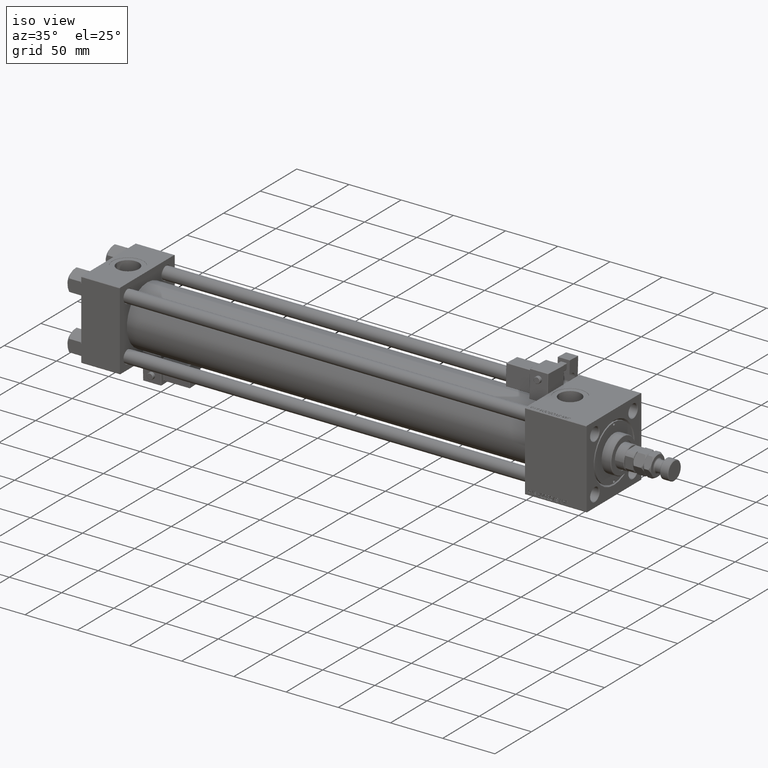
[diagram: clean part render]
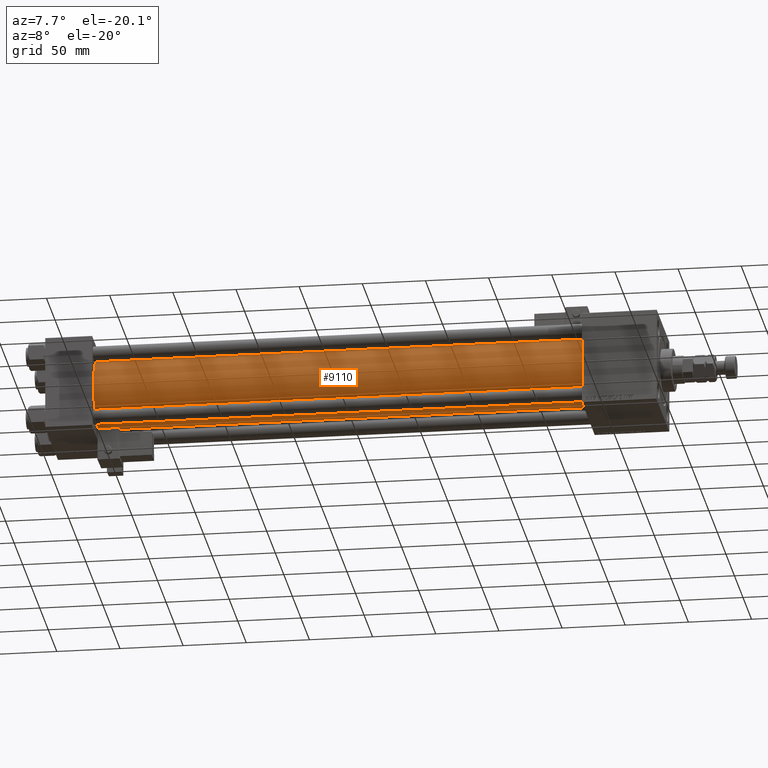
[diagram: tour spotlight — one face highlighted and labeled with its STEP entity id]
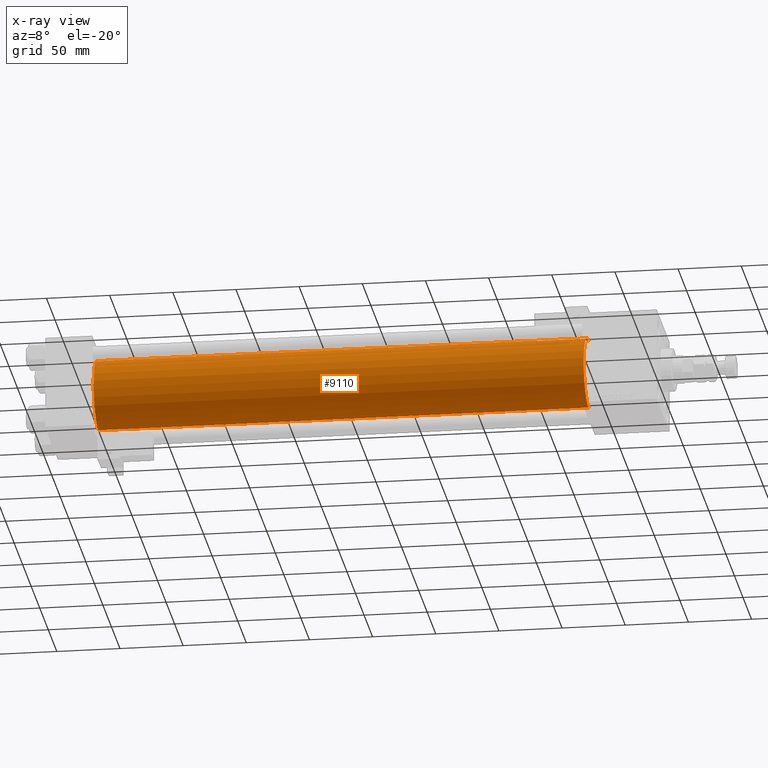
[diagram: x-ray of the same camera — body ghosted, this tour face saturated]
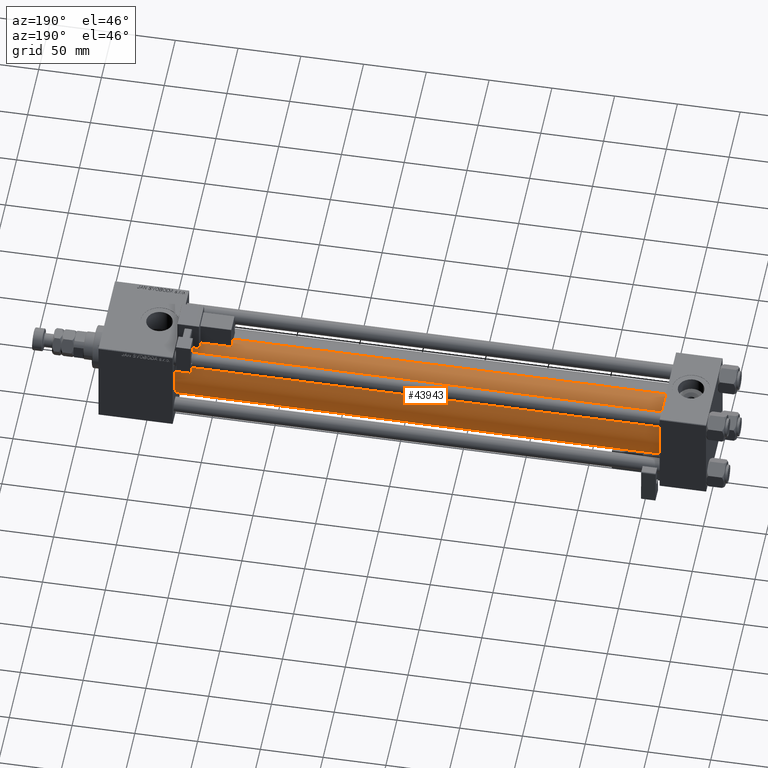
[diagram: tour spotlight — one face highlighted and labeled with its STEP entity id]
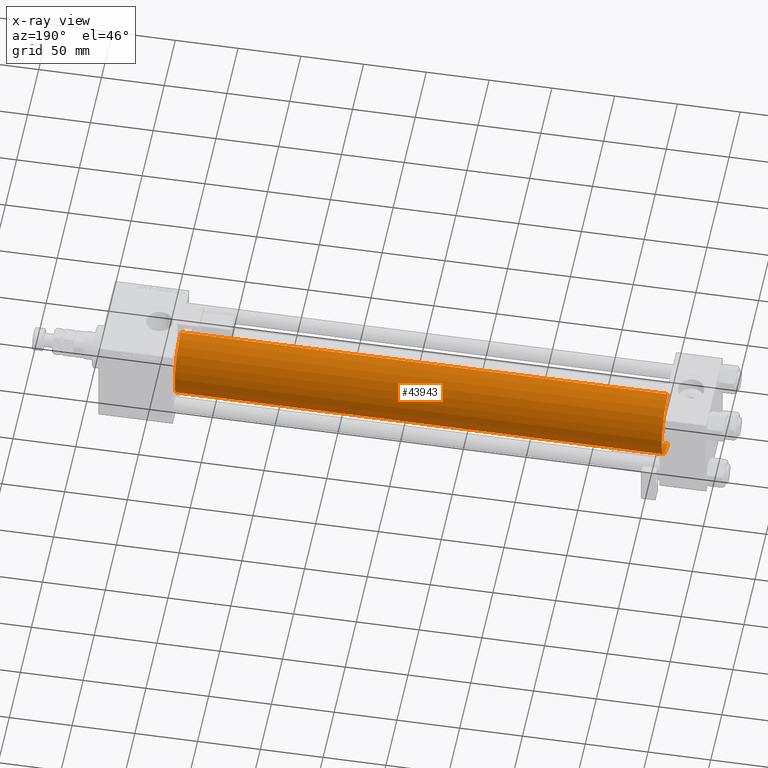
[diagram: x-ray of the same camera — body ghosted, this tour face saturated]
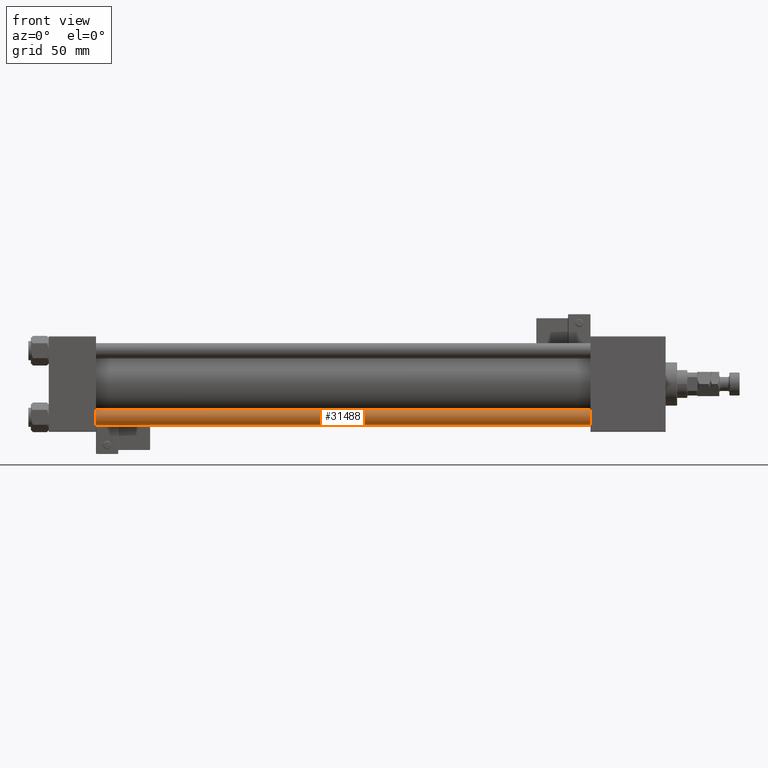
[diagram: tour spotlight — one face highlighted and labeled with its STEP entity id]
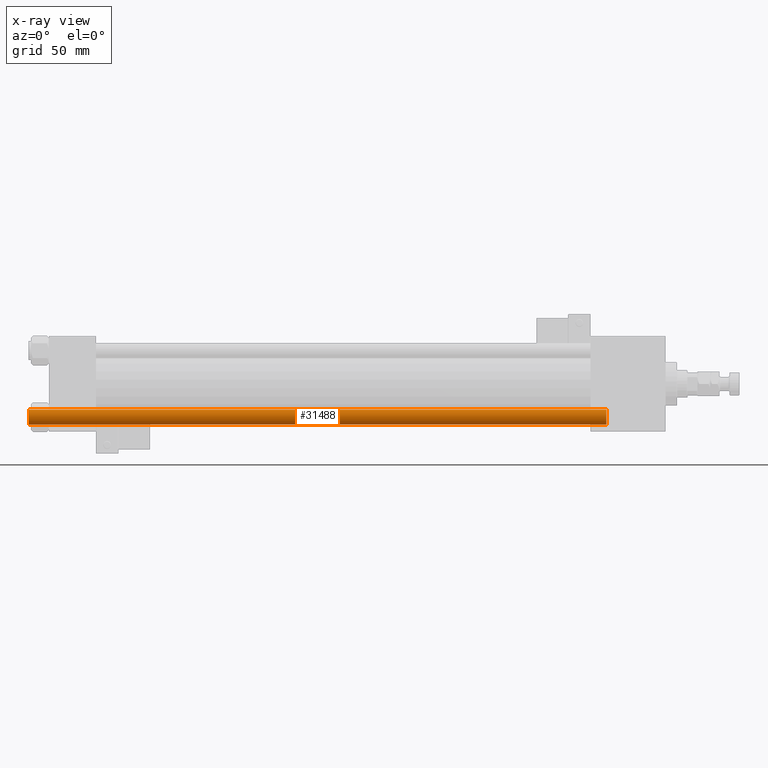
[diagram: x-ray of the same camera — body ghosted, this tour face saturated]
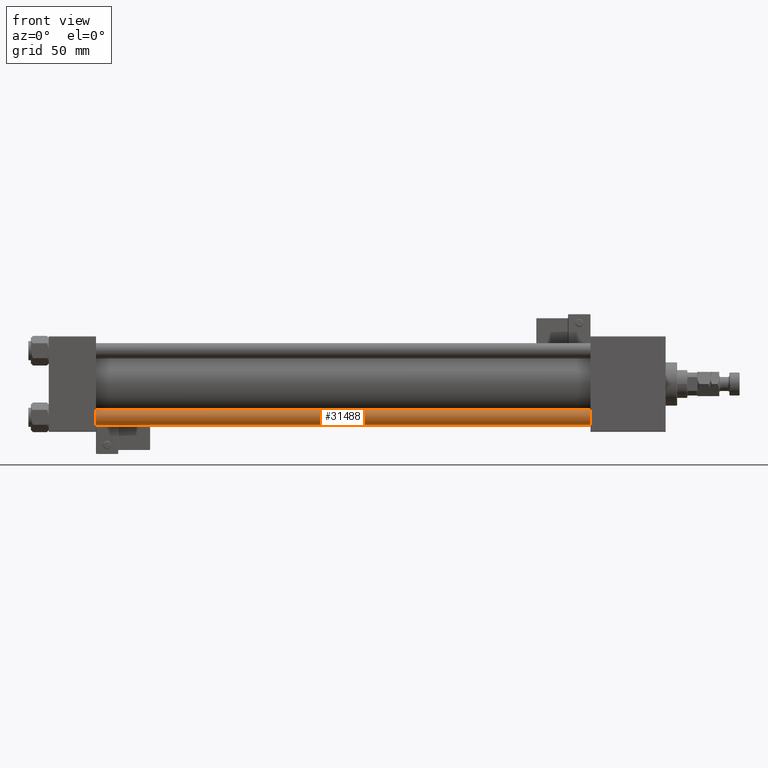
[diagram: tour spotlight — one face highlighted and labeled with its STEP entity id]
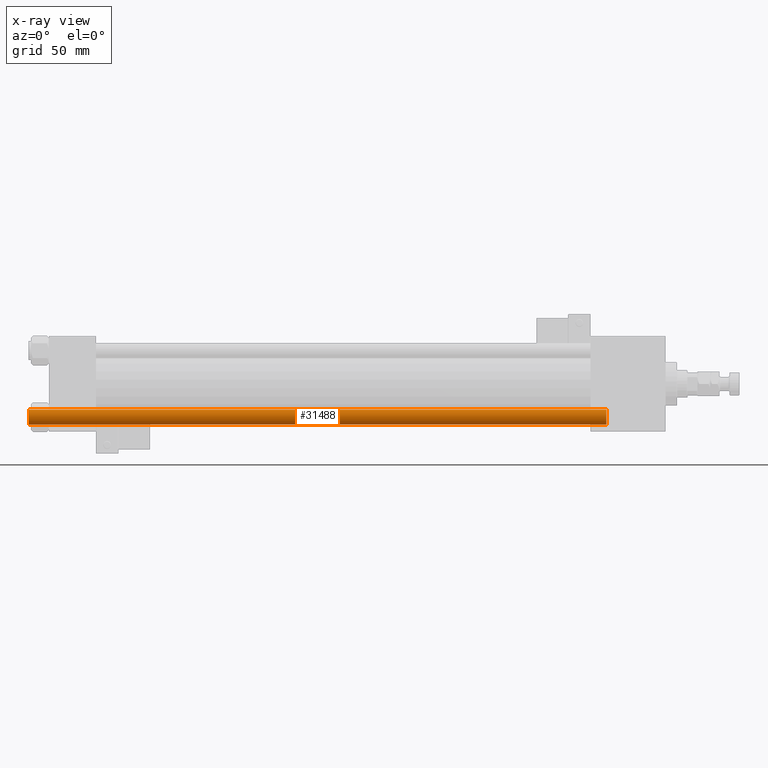
[diagram: x-ray of the same camera — body ghosted, this tour face saturated]
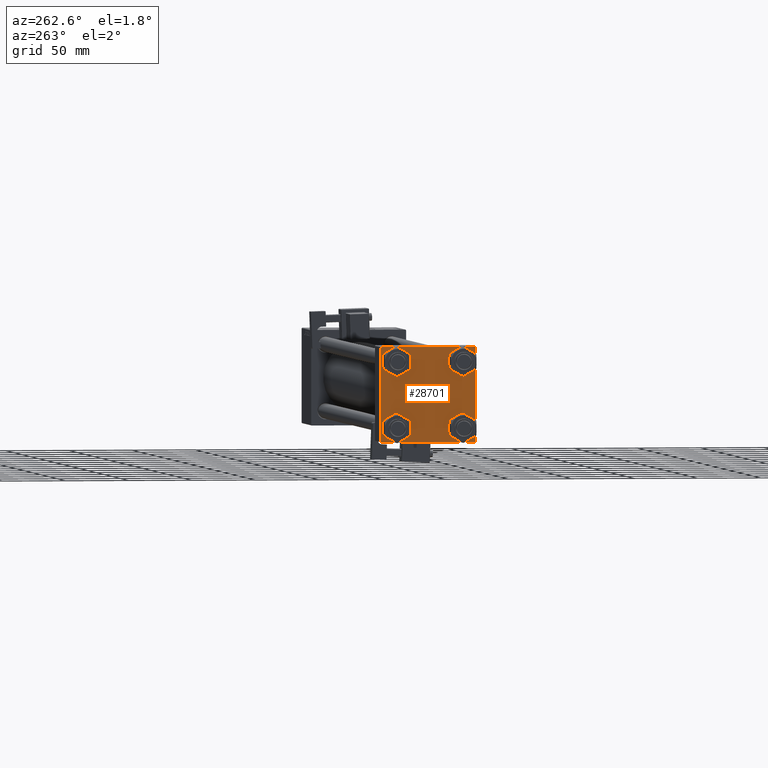
[diagram: tour spotlight — one face highlighted and labeled with its STEP entity id]
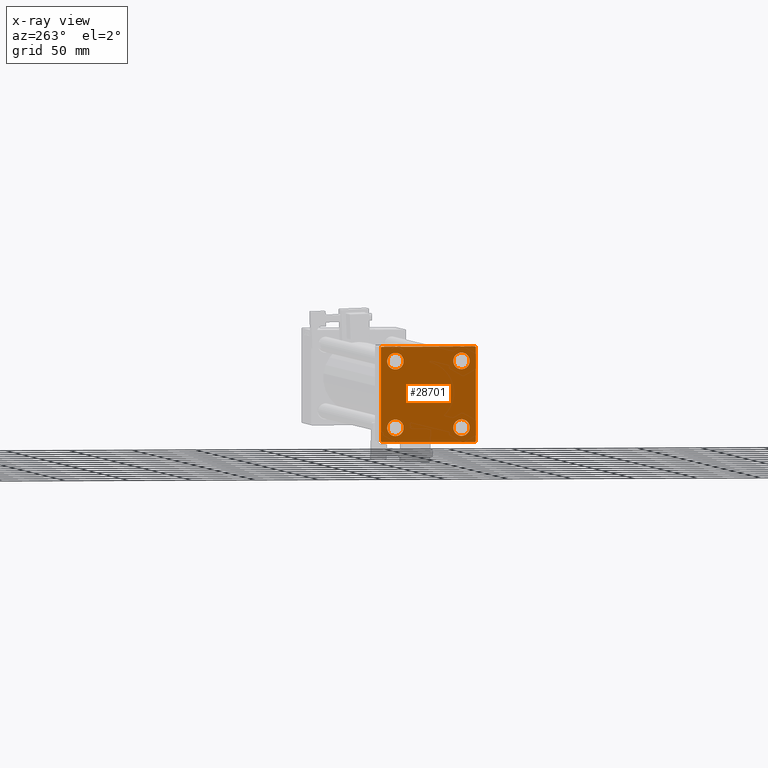
[diagram: x-ray of the same camera — body ghosted, this tour face saturated]
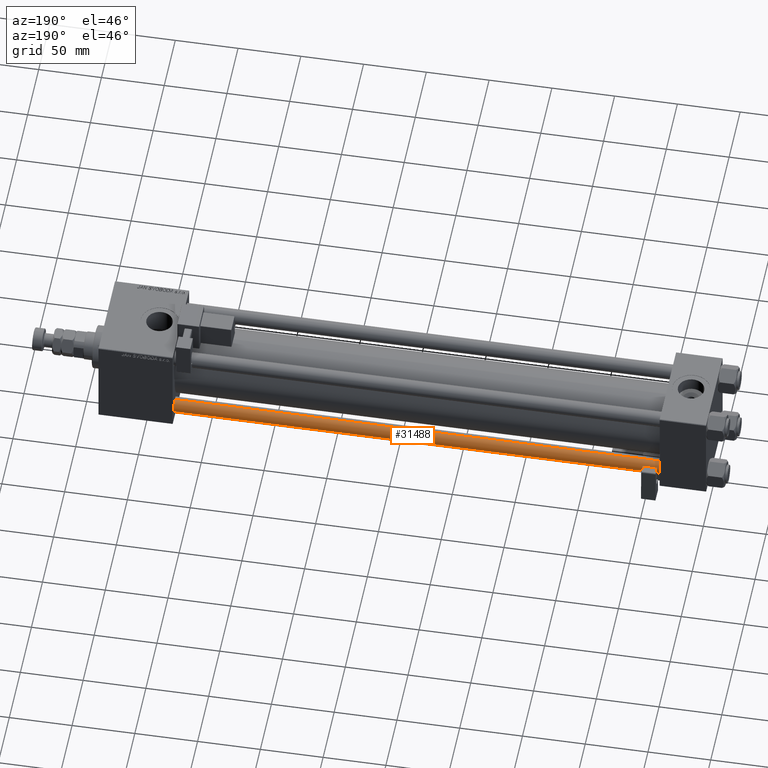
[diagram: tour spotlight — one face highlighted and labeled with its STEP entity id]
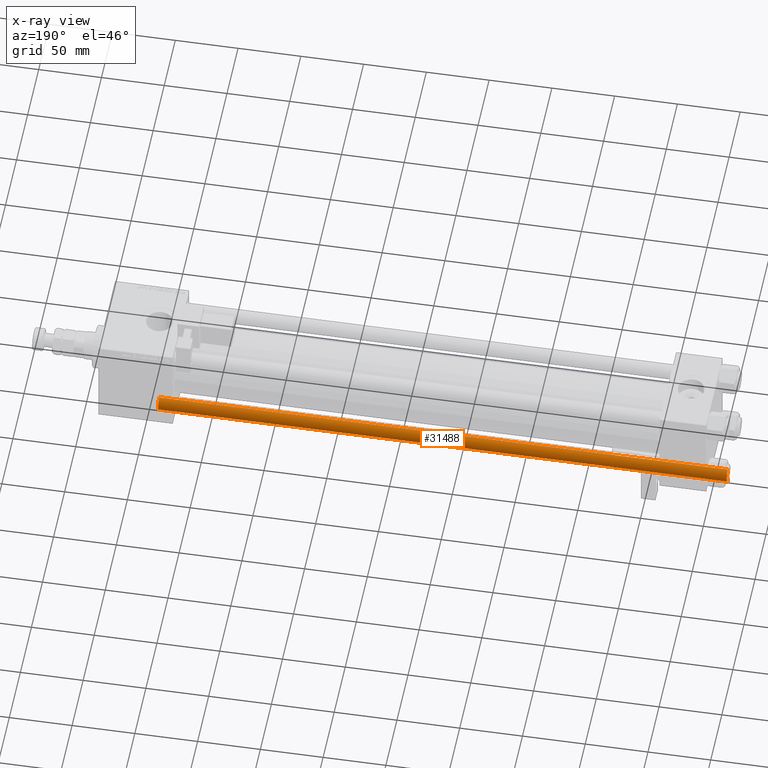
[diagram: x-ray of the same camera — body ghosted, this tour face saturated]
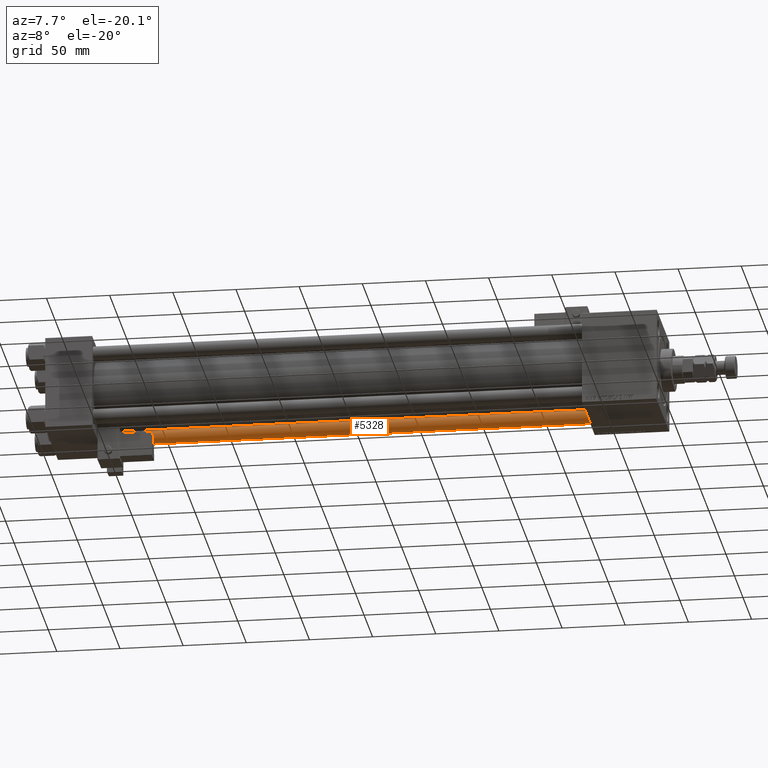
[diagram: tour spotlight — one face highlighted and labeled with its STEP entity id]
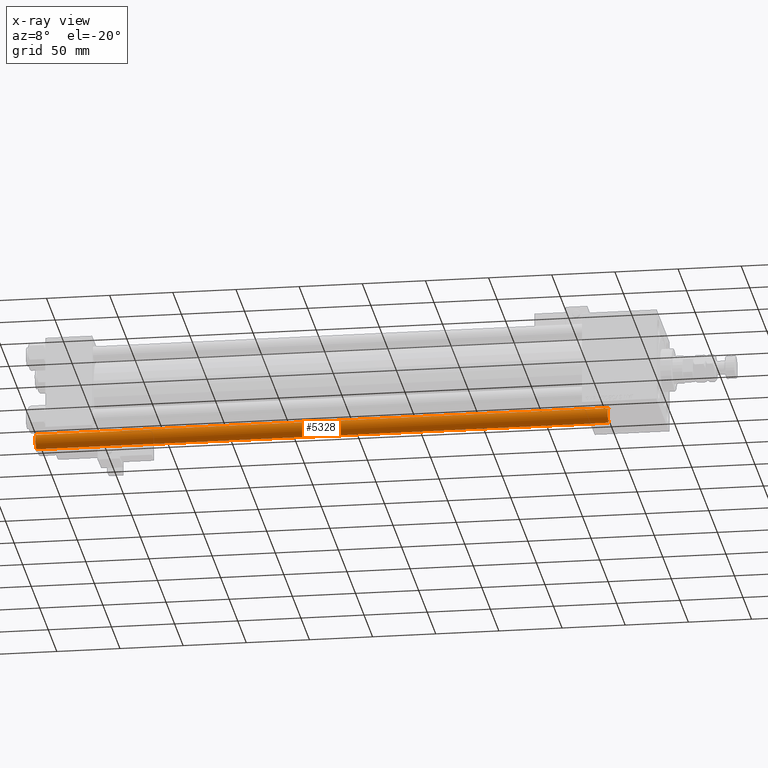
[diagram: x-ray of the same camera — body ghosted, this tour face saturated]
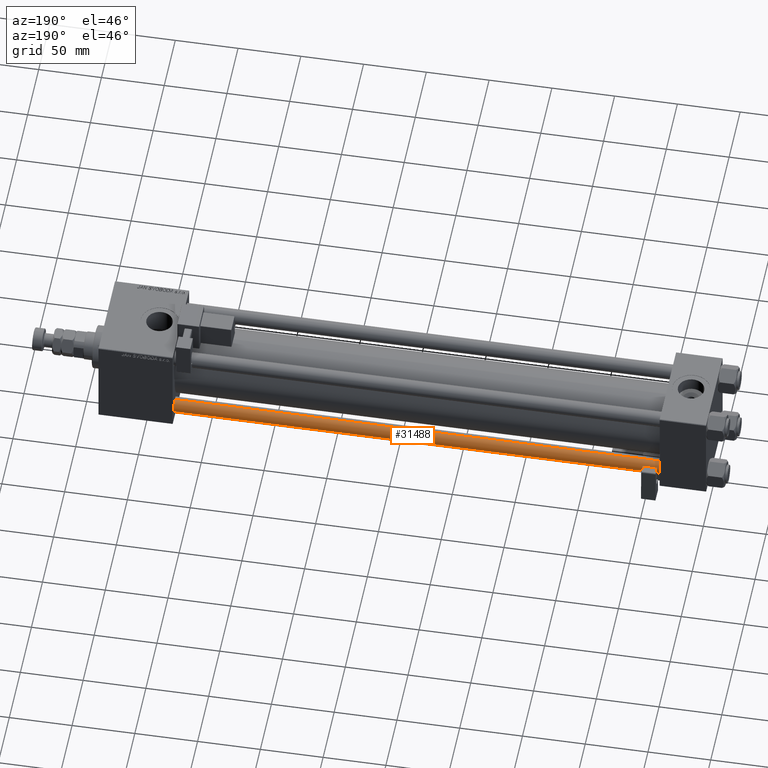
[diagram: tour spotlight — one face highlighted and labeled with its STEP entity id]
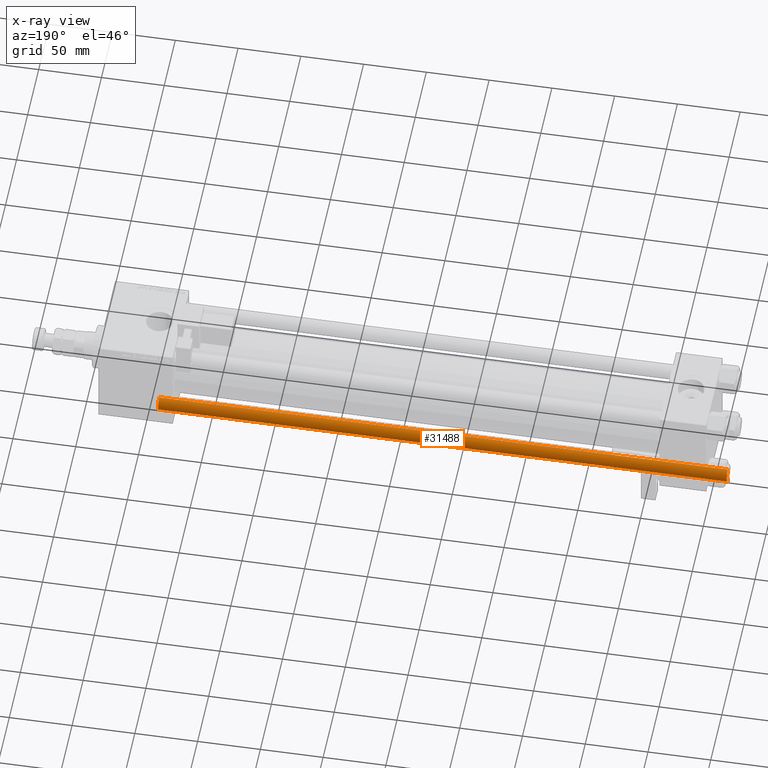
[diagram: x-ray of the same camera — body ghosted, this tour face saturated]
A machine part: a face-by-face anatomy tour. The part has 1360 B-rep faces; the first image is the clean iso view, then the 8 largest visible faces are spotlighted one at a time (largest first), each with its STEP entity span.

Face 1 — auxiliary view, entity #9110. An x-ray twin of the same camera follows (body ghosted, this face saturated) — the face is partly hidden behind the body. In plain terms, the highlighted cylindrical surface (edge-blend (fillet) strip) has radius 28 mm, axis along (-1, -0, -0).
Definition (entity closure, byte-faithful):
#2980 = EDGE_CURVE ( 'NONE', #4056, #36654, #24397, .T. ) ;
#3106 = AXIS2_PLACEMENT_3D ( 'NONE', #28769, #37259, #53993 ) ;
#3555 = DIRECTION ( 'NONE',  ( -1.000000000000000000, -0.000000000000000000, -0.000000000000000000 ) ) ;
#4056 = VERTEX_POINT ( 'NONE', #20994 ) ;
#6784 = DIRECTION ( 'NONE',  ( -1.000000000000000000, -0.000000000000000000, -0.000000000000000000 ) ) ;
#7036 = LINE ( 'NONE', #32005, #21461 ) ;
#7300 = CARTESIAN_POINT ( 'NONE',  ( 425.0000000000000000, -2.602085213965210642E-15, 28.00000000000000000 ) ) ;
#9110 = ADVANCED_FACE ( 'NONE', ( #35863 ), #48471, .T. ) ;
#10541 = CARTESIAN_POINT ( 'NONE',  ( 36.99999999999997868, -2.602085213965210642E-15, 0.000000000000000000 ) ) ;
#11172 = DIRECTION ( 'NONE',  ( 0.000000000000000000, 0.000000000000000000, 1.000000000000000000 ) ) ;
#15300 = DIRECTION ( 'NONE',  ( -1.000000000000000000, -0.000000000000000000, -0.000000000000000000 ) ) ;
#17455 = ORIENTED_EDGE ( 'NONE', *, *, #2980, .F. ) ;
#20994 = CARTESIAN_POINT ( 'NONE',  ( 425.0000000000000000, 8.269258236473776482E-16, -28.00000000000000000 ) ) ;
#21271 = AXIS2_PLACEMENT_3D ( 'NONE', #35331, #15300, #11172 ) ;
#21461 = VECTOR ( 'NONE', #6784, 1000.000000000000000 ) ;
#24397 = LINE ( 'NONE', #41108, #52689 ) ;
#26097 = VERTEX_POINT ( 'NONE', #7300 ) ;
#28769 = CARTESIAN_POINT ( 'NONE',  ( 425.0000000000000000, -2.602085213965210642E-15, 0.000000000000000000 ) ) ;
#29573 = CARTESIAN_POINT ( 'NONE',  ( 36.99999999999997868, 8.269258236473776482E-16, -28.00000000000000000 ) ) ;
#29839 = ORIENTED_EDGE ( 'NONE', *, *, #38023, .T. ) ;
#30577 = CARTESIAN_POINT ( 'NONE',  ( 36.99999999999997868, -2.602085213965210642E-15, 28.00000000000000000 ) ) ;
#31411 = DIRECTION ( 'NONE',  ( 1.000000000000000000, -0.000000000000000000, 0.000000000000000000 ) ) ;
#32005 = CARTESIAN_POINT ( 'NONE',  ( 425.0000000000000000, -2.602085213965210642E-15, 28.00000000000000000 ) ) ;
#32708 = EDGE_CURVE ( 'NONE', #45252, #36654, #41518, .T. ) ;
#35331 = CARTESIAN_POINT ( 'NONE',  ( 425.0000000000000000, -2.602085213965210642E-15, 0.000000000000000000 ) ) ;
#35863 = FACE_OUTER_BOUND ( 'NONE', #44370, .T. ) ;
#36654 = VERTEX_POINT ( 'NONE', #29573 ) ;
#37259 = DIRECTION ( 'NONE',  ( 1.000000000000000000, 0.000000000000000000, 0.000000000000000000 ) ) ;
#38023 = EDGE_CURVE ( 'NONE', #26097, #45252, #7036, .T. ) ;
#38704 = EDGE_CURVE ( 'NONE', #26097, #4056, #52994, .T. ) ;
#38807 = DIRECTION ( 'NONE',  ( 0.000000000000000000, 0.000000000000000000, 1.000000000000000000 ) ) ;
#39856 = ORIENTED_EDGE ( 'NONE', *, *, #38704, .F. ) ;
#41108 = CARTESIAN_POINT ( 'NONE',  ( 425.0000000000000000, 8.269258236473776482E-16, -28.00000000000000000 ) ) ;
#41518 = CIRCLE ( 'NONE', #42379, 28.00000000000000000 ) ;
#42379 = AXIS2_PLACEMENT_3D ( 'NONE', #10541, #31411, #38807 ) ;
#44370 = EDGE_LOOP ( 'NONE', ( #17455, #39856, #29839, #52716 ) ) ;
#45252 = VERTEX_POINT ( 'NONE', #30577 ) ;
#48471 = CYLINDRICAL_SURFACE ( 'NONE', #21271, 28.00000000000000000 ) ;
#52689 = VECTOR ( 'NONE', #3555, 1000.000000000000000 ) ;
#52716 = ORIENTED_EDGE ( 'NONE', *, *, #32708, .T. ) ;
#52994 = CIRCLE ( 'NONE', #3106, 28.00000000000000000 ) ;
#53993 = DIRECTION ( 'NONE',  ( 0.000000000000000000, 0.000000000000000000, -1.000000000000000000 ) ) ;

Face 2 — auxiliary view, entity #43943. An x-ray twin of the same camera follows (body ghosted, this face saturated) — the face is partly hidden behind the body. In plain terms, the highlighted cylindrical surface (edge-blend (fillet) strip) has radius 28 mm, axis along (-1, -0, -0).
Definition (entity closure, byte-faithful):
#415 = EDGE_CURVE ( 'NONE', #4056, #26097, #22792, .T. ) ;
#2980 = EDGE_CURVE ( 'NONE', #4056, #36654, #24397, .T. ) ;
#3521 = CARTESIAN_POINT ( 'NONE',  ( 425.0000000000000000, -2.602085213965210642E-15, 0.000000000000000000 ) ) ;
#3555 = DIRECTION ( 'NONE',  ( -1.000000000000000000, -0.000000000000000000, -0.000000000000000000 ) ) ;
#4056 = VERTEX_POINT ( 'NONE', #20994 ) ;
#4393 = AXIS2_PLACEMENT_3D ( 'NONE', #3521, #22410, #34479 ) ;
#6784 = DIRECTION ( 'NONE',  ( -1.000000000000000000, -0.000000000000000000, -0.000000000000000000 ) ) ;
#7036 = LINE ( 'NONE', #32005, #21461 ) ;
#7300 = CARTESIAN_POINT ( 'NONE',  ( 425.0000000000000000, -2.602085213965210642E-15, 28.00000000000000000 ) ) ;
#8032 = DIRECTION ( 'NONE',  ( 0.000000000000000000, 0.000000000000000000, 1.000000000000000000 ) ) ;
#12824 = AXIS2_PLACEMENT_3D ( 'NONE', #43119, #38748, #18450 ) ;
#17227 = CIRCLE ( 'NONE', #12824, 28.00000000000000000 ) ;
#17371 = EDGE_CURVE ( 'NONE', #36654, #45252, #17227, .T. ) ;
#18450 = DIRECTION ( 'NONE',  ( 0.000000000000000000, 0.000000000000000000, 1.000000000000000000 ) ) ;
#20994 = CARTESIAN_POINT ( 'NONE',  ( 425.0000000000000000, 8.269258236473776482E-16, -28.00000000000000000 ) ) ;
#21461 = VECTOR ( 'NONE', #6784, 1000.000000000000000 ) ;
#22410 = DIRECTION ( 'NONE',  ( 1.000000000000000000, 0.000000000000000000, 0.000000000000000000 ) ) ;
#22792 = CIRCLE ( 'NONE', #4393, 28.00000000000000000 ) ;
#23275 = ORIENTED_EDGE ( 'NONE', *, *, #2980, .T. ) ;
#24397 = LINE ( 'NONE', #41108, #52689 ) ;
#24489 = DIRECTION ( 'NONE',  ( -1.000000000000000000, -0.000000000000000000, -0.000000000000000000 ) ) ;
#26097 = VERTEX_POINT ( 'NONE', #7300 ) ;
#28610 = FACE_OUTER_BOUND ( 'NONE', #38569, .T. ) ;
#29552 = ORIENTED_EDGE ( 'NONE', *, *, #38023, .F. ) ;
#29573 = CARTESIAN_POINT ( 'NONE',  ( 36.99999999999997868, 8.269258236473776482E-16, -28.00000000000000000 ) ) ;
#30577 = CARTESIAN_POINT ( 'NONE',  ( 36.99999999999997868, -2.602085213965210642E-15, 28.00000000000000000 ) ) ;
#32005 = CARTESIAN_POINT ( 'NONE',  ( 425.0000000000000000, -2.602085213965210642E-15, 28.00000000000000000 ) ) ;
#32995 = CARTESIAN_POINT ( 'NONE',  ( 425.0000000000000000, -2.602085213965210642E-15, 0.000000000000000000 ) ) ;
#34479 = DIRECTION ( 'NONE',  ( 0.000000000000000000, 0.000000000000000000, -1.000000000000000000 ) ) ;
#36654 = VERTEX_POINT ( 'NONE', #29573 ) ;
#38023 = EDGE_CURVE ( 'NONE', #26097, #45252, #7036, .T. ) ;
#38569 = EDGE_LOOP ( 'NONE', ( #44741, #23275, #52826, #29552 ) ) ;
#38748 = DIRECTION ( 'NONE',  ( 1.000000000000000000, -0.000000000000000000, 0.000000000000000000 ) ) ;
#41108 = CARTESIAN_POINT ( 'NONE',  ( 425.0000000000000000, 8.269258236473776482E-16, -28.00000000000000000 ) ) ;
#43119 = CARTESIAN_POINT ( 'NONE',  ( 36.99999999999997868, -2.602085213965210642E-15, 0.000000000000000000 ) ) ;
#43943 = ADVANCED_FACE ( 'NONE', ( #28610 ), #53558, .T. ) ;
#44741 = ORIENTED_EDGE ( 'NONE', *, *, #415, .F. ) ;
#45252 = VERTEX_POINT ( 'NONE', #30577 ) ;
#45337 = AXIS2_PLACEMENT_3D ( 'NONE', #32995, #24489, #8032 ) ;
#52689 = VECTOR ( 'NONE', #3555, 1000.000000000000000 ) ;
#52826 = ORIENTED_EDGE ( 'NONE', *, *, #17371, .T. ) ;
#53558 = CYLINDRICAL_SURFACE ( 'NONE', #45337, 28.00000000000000000 ) ;

Face 3 — front view, entity #31488. An x-ray twin of the same camera follows (body ghosted, this face saturated) — the face is partly hidden behind the body. In plain terms, the highlighted cylindrical surface (edge-blend (fillet) strip) has radius 6 mm, axis along (1, 0, -0).
Definition (entity closure, byte-faithful):
#330 = AXIS2_PLACEMENT_3D ( 'NONE', #35501, #14660, #31395 ) ;
#5719 = AXIS2_PLACEMENT_3D ( 'NONE', #37791, #37524, #45741 ) ;
#5920 = VERTEX_POINT ( 'NONE', #26826 ) ;
#6085 = CARTESIAN_POINT ( 'NONE',  ( 6.000000000000000888, 7.347880794884119736E-16, 0.5000000000004445333 ) ) ;
#8601 = VECTOR ( 'NONE', #24972, 1000.000000000000000 ) ;
#8641 = DIRECTION ( 'NONE',  ( -0.000000000000000000, -0.000000000000000000, -1.000000000000000000 ) ) ;
#9053 = LINE ( 'NONE', #33741, #8601 ) ;
#11234 = DIRECTION ( 'NONE',  ( 0.000000000000000000, 0.000000000000000000, -1.000000000000000000 ) ) ;
#11566 = AXIS2_PLACEMENT_3D ( 'NONE', #32097, #11234, #19212 ) ;
#12426 = EDGE_LOOP ( 'NONE', ( #40154, #51109, #26751, #24054 ) ) ;
#14660 = DIRECTION ( 'NONE',  ( -0.000000000000000000, -0.000000000000000000, -1.000000000000000000 ) ) ;
#18772 = FACE_OUTER_BOUND ( 'NONE', #12426, .T. ) ;
#19212 = DIRECTION ( 'NONE',  ( 1.000000000000000000, 0.000000000000000000, 0.000000000000000000 ) ) ;
#19977 = VERTEX_POINT ( 'NONE', #38562 ) ;
#21001 = EDGE_CURVE ( 'NONE', #19977, #26473, #50031, .T. ) ;
#21067 = VECTOR ( 'NONE', #8641, 1000.000000000000000 ) ;
#24054 = ORIENTED_EDGE ( 'NONE', *, *, #21001, .F. ) ;
#24972 = DIRECTION ( 'NONE',  ( -0.000000000000000000, -0.000000000000000000, -1.000000000000000000 ) ) ;
#26473 = VERTEX_POINT ( 'NONE', #36824 ) ;
#26751 = ORIENTED_EDGE ( 'NONE', *, *, #38741, .T. ) ;
#26826 = CARTESIAN_POINT ( 'NONE',  ( 6.000000000000000888, 7.347880794884119736E-16, 453.5000000000002842 ) ) ;
#31395 = DIRECTION ( 'NONE',  ( -1.000000000000000000, 0.000000000000000000, 0.000000000000000000 ) ) ;
#31488 = ADVANCED_FACE ( 'NONE', ( #18772 ), #39598, .T. ) ;
#31748 = CIRCLE ( 'NONE', #11566, 6.000000000000000888 ) ;
#32097 = CARTESIAN_POINT ( 'NONE',  ( 0.000000000000000000, 0.000000000000000000, 453.5000000000002842 ) ) ;
#33741 = CARTESIAN_POINT ( 'NONE',  ( 6.000000000000000888, 7.347880794884119736E-16, 454.0000000000000000 ) ) ;
#34521 = VERTEX_POINT ( 'NONE', #6085 ) ;
#35501 = CARTESIAN_POINT ( 'NONE',  ( 0.000000000000000000, 0.000000000000000000, 454.0000000000000000 ) ) ;
#36824 = CARTESIAN_POINT ( 'NONE',  ( -6.000000000000000888, 0.000000000000000000, 0.5000000000004445333 ) ) ;
#37524 = DIRECTION ( 'NONE',  ( -0.000000000000000000, -0.000000000000000000, 1.000000000000000000 ) ) ;
#37791 = CARTESIAN_POINT ( 'NONE',  ( 0.000000000000000000, 0.000000000000000000, 0.5000000000004445333 ) ) ;
#38116 = CIRCLE ( 'NONE', #5719, 6.000000000000000888 ) ;
#38562 = CARTESIAN_POINT ( 'NONE',  ( -6.000000000000000888, 0.000000000000000000, 453.5000000000002842 ) ) ;
#38741 = EDGE_CURVE ( 'NONE', #34521, #26473, #38116, .T. ) ;
#39598 = CYLINDRICAL_SURFACE ( 'NONE', #330, 6.000000000000000888 ) ;
#40154 = ORIENTED_EDGE ( 'NONE', *, *, #49040, .T. ) ;
#42625 = CARTESIAN_POINT ( 'NONE',  ( -6.000000000000000888, 0.000000000000000000, 454.0000000000000000 ) ) ;
#44470 = EDGE_CURVE ( 'NONE', #5920, #34521, #9053, .T. ) ;
#45741 = DIRECTION ( 'NONE',  ( 1.000000000000000000, 0.000000000000000000, 0.000000000000000000 ) ) ;
#49040 = EDGE_CURVE ( 'NONE', #19977, #5920, #31748, .T. ) ;
#50031 = LINE ( 'NONE', #42625, #21067 ) ;
#51109 = ORIENTED_EDGE ( 'NONE', *, *, #44470, .T. ) ;

Face 4 — front view, entity #31488. An x-ray twin of the same camera follows (body ghosted, this face saturated) — the face is partly hidden behind the body. In plain terms, the highlighted cylindrical surface (edge-blend (fillet) strip) has radius 6 mm, axis along (-1, -0, -0).
Definition (entity closure, byte-faithful):
#330 = AXIS2_PLACEMENT_3D ( 'NONE', #35501, #14660, #31395 ) ;
#5719 = AXIS2_PLACEMENT_3D ( 'NONE', #37791, #37524, #45741 ) ;
#5920 = VERTEX_POINT ( 'NONE', #26826 ) ;
#6085 = CARTESIAN_POINT ( 'NONE',  ( 6.000000000000000888, 7.347880794884119736E-16, 0.5000000000004445333 ) ) ;
#8601 = VECTOR ( 'NONE', #24972, 1000.000000000000000 ) ;
#8641 = DIRECTION ( 'NONE',  ( -0.000000000000000000, -0.000000000000000000, -1.000000000000000000 ) ) ;
#9053 = LINE ( 'NONE', #33741, #8601 ) ;
#11234 = DIRECTION ( 'NONE',  ( 0.000000000000000000, 0.000000000000000000, -1.000000000000000000 ) ) ;
#11566 = AXIS2_PLACEMENT_3D ( 'NONE', #32097, #11234, #19212 ) ;
#12426 = EDGE_LOOP ( 'NONE', ( #40154, #51109, #26751, #24054 ) ) ;
#14660 = DIRECTION ( 'NONE',  ( -0.000000000000000000, -0.000000000000000000, -1.000000000000000000 ) ) ;
#18772 = FACE_OUTER_BOUND ( 'NONE', #12426, .T. ) ;
#19212 = DIRECTION ( 'NONE',  ( 1.000000000000000000, 0.000000000000000000, 0.000000000000000000 ) ) ;
#19977 = VERTEX_POINT ( 'NONE', #38562 ) ;
#21001 = EDGE_CURVE ( 'NONE', #19977, #26473, #50031, .T. ) ;
#21067 = VECTOR ( 'NONE', #8641, 1000.000000000000000 ) ;
#24054 = ORIENTED_EDGE ( 'NONE', *, *, #21001, .F. ) ;
#24972 = DIRECTION ( 'NONE',  ( -0.000000000000000000, -0.000000000000000000, -1.000000000000000000 ) ) ;
#26473 = VERTEX_POINT ( 'NONE', #36824 ) ;
#26751 = ORIENTED_EDGE ( 'NONE', *, *, #38741, .T. ) ;
#26826 = CARTESIAN_POINT ( 'NONE',  ( 6.000000000000000888, 7.347880794884119736E-16, 453.5000000000002842 ) ) ;
#31395 = DIRECTION ( 'NONE',  ( -1.000000000000000000, 0.000000000000000000, 0.000000000000000000 ) ) ;
#31488 = ADVANCED_FACE ( 'NONE', ( #18772 ), #39598, .T. ) ;
#31748 = CIRCLE ( 'NONE', #11566, 6.000000000000000888 ) ;
#32097 = CARTESIAN_POINT ( 'NONE',  ( 0.000000000000000000, 0.000000000000000000, 453.5000000000002842 ) ) ;
#33741 = CARTESIAN_POINT ( 'NONE',  ( 6.000000000000000888, 7.347880794884119736E-16, 454.0000000000000000 ) ) ;
#34521 = VERTEX_POINT ( 'NONE', #6085 ) ;
#35501 = CARTESIAN_POINT ( 'NONE',  ( 0.000000000000000000, 0.000000000000000000, 454.0000000000000000 ) ) ;
#36824 = CARTESIAN_POINT ( 'NONE',  ( -6.000000000000000888, 0.000000000000000000, 0.5000000000004445333 ) ) ;
#37524 = DIRECTION ( 'NONE',  ( -0.000000000000000000, -0.000000000000000000, 1.000000000000000000 ) ) ;
#37791 = CARTESIAN_POINT ( 'NONE',  ( 0.000000000000000000, 0.000000000000000000, 0.5000000000004445333 ) ) ;
#38116 = CIRCLE ( 'NONE', #5719, 6.000000000000000888 ) ;
#38562 = CARTESIAN_POINT ( 'NONE',  ( -6.000000000000000888, 0.000000000000000000, 453.5000000000002842 ) ) ;
#38741 = EDGE_CURVE ( 'NONE', #34521, #26473, #38116, .T. ) ;
#39598 = CYLINDRICAL_SURFACE ( 'NONE', #330, 6.000000000000000888 ) ;
#40154 = ORIENTED_EDGE ( 'NONE', *, *, #49040, .T. ) ;
#42625 = CARTESIAN_POINT ( 'NONE',  ( -6.000000000000000888, 0.000000000000000000, 454.0000000000000000 ) ) ;
#44470 = EDGE_CURVE ( 'NONE', #5920, #34521, #9053, .T. ) ;
#45741 = DIRECTION ( 'NONE',  ( 1.000000000000000000, 0.000000000000000000, 0.000000000000000000 ) ) ;
#49040 = EDGE_CURVE ( 'NONE', #19977, #5920, #31748, .T. ) ;
#50031 = LINE ( 'NONE', #42625, #21067 ) ;
#51109 = ORIENTED_EDGE ( 'NONE', *, *, #44470, .T. ) ;

Face 5 — auxiliary view, entity #28701. An x-ray twin of the same camera follows (body ghosted, this face saturated) — the face is partly hidden behind the body. In plain terms, the highlighted planar face has unit normal (-1, 0, 0).
Definition (entity closure, byte-faithful):
#61 = ORIENTED_EDGE ( 'NONE', *, *, #32110, .T. ) ;
#216 = EDGE_CURVE ( 'NONE', #16926, #44894, #44631, .T. ) ;
#269 = CARTESIAN_POINT ( 'NONE',  ( 0.000000000000000000, 37.49999999999999289, 37.50000000000000000 ) ) ;
#606 = EDGE_CURVE ( 'NONE', #46222, #44894, #16340, .T. ) ;
#835 = DIRECTION ( 'NONE',  ( 1.000000000000000000, -0.000000000000000000, 0.000000000000000000 ) ) ;
#1155 = EDGE_CURVE ( 'NONE', #19688, #5553, #24170, .T. ) ;
#1345 = DIRECTION ( 'NONE',  ( 0.000000000000000000, -1.000000000000000000, -9.251858538542971581E-17 ) ) ;
#1848 = CARTESIAN_POINT ( 'NONE',  ( 0.000000000000000000, 37.49999999999999289, 37.00000000000000000 ) ) ;
#3034 = VECTOR ( 'NONE', #26722, 1000.000000000000114 ) ;
#3283 = ORIENTED_EDGE ( 'NONE', *, *, #41432, .T. ) ;
#3288 = CARTESIAN_POINT ( 'NONE',  ( 0.000000000000000000, 26.14999999999999858, 19.64999999999998437 ) ) ;
#3513 = ORIENTED_EDGE ( 'NONE', *, *, #216, .F. ) ;
#3686 = ORIENTED_EDGE ( 'NONE', *, *, #34066, .T. ) ;
#3876 = CARTESIAN_POINT ( 'NONE',  ( 0.000000000000000000, 37.24999999999998579, -37.24999999999998579 ) ) ;
#4105 = DIRECTION ( 'NONE',  ( 1.000000000000000000, -0.000000000000000000, 0.000000000000000000 ) ) ;
#4800 = CIRCLE ( 'NONE', #36341, 6.500000000000023093 ) ;
#5094 = DIRECTION ( 'NONE',  ( 0.000000000000000000, 0.000000000000000000, 1.000000000000000000 ) ) ;
#5553 = VERTEX_POINT ( 'NONE', #26611 ) ;
#5616 = CARTESIAN_POINT ( 'NONE',  ( -0.000000000000000000, -37.25000000000000000, 37.25000000000000000 ) ) ;
#5752 = AXIS2_PLACEMENT_3D ( 'NONE', #31401, #35774, #48106 ) ;
#6591 = CARTESIAN_POINT ( 'NONE',  ( 0.000000000000000000, -26.14999999999999147, 32.65000000000003411 ) ) ;
#7592 = AXIS2_PLACEMENT_3D ( 'NONE', #45749, #4105, #24941 ) ;
#7910 = EDGE_CURVE ( 'NONE', #53569, #36537, #15934, .T. ) ;
#8077 = AXIS2_PLACEMENT_3D ( 'NONE', #28236, #18943, #11231 ) ;
#9969 = VERTEX_POINT ( 'NONE', #48822 ) ;
#10441 = DIRECTION ( 'NONE',  ( 0.000000000000000000, 0.000000000000000000, 1.000000000000000000 ) ) ;
#10496 = DIRECTION ( 'NONE',  ( 1.000000000000000000, -0.000000000000000000, 0.000000000000000000 ) ) ;
#10707 = AXIS2_PLACEMENT_3D ( 'NONE', #41718, #20899, #37599 ) ;
#11116 = CARTESIAN_POINT ( 'NONE',  ( 0.000000000000000000, 37.24999999999999289, 37.24999999999999289 ) ) ;
#11231 = DIRECTION ( 'NONE',  ( 0.000000000000000000, 0.000000000000000000, 1.000000000000000000 ) ) ;
#12362 = FACE_BOUND ( 'NONE', #19289, .T. ) ;
#12511 = ORIENTED_EDGE ( 'NONE', *, *, #13811, .T. ) ;
#13143 = VECTOR ( 'NONE', #20793, 1000.000000000000000 ) ;
#13522 = EDGE_CURVE ( 'NONE', #44966, #19688, #50749, .T. ) ;
#13811 = EDGE_CURVE ( 'NONE', #40427, #38671, #4800, .T. ) ;
#14567 = ORIENTED_EDGE ( 'NONE', *, *, #606, .T. ) ;
#14686 = EDGE_LOOP ( 'NONE', ( #21633, #48143 ) ) ;
#14703 = DIRECTION ( 'NONE',  ( 0.000000000000000000, 0.7071067811865474617, -0.7071067811865474617 ) ) ;
#15197 = VERTEX_POINT ( 'NONE', #27080 ) ;
#15297 = ORIENTED_EDGE ( 'NONE', *, *, #18409, .T. ) ;
#15829 = ORIENTED_EDGE ( 'NONE', *, *, #1155, .T. ) ;
#15934 = CIRCLE ( 'NONE', #8077, 6.500000000000023093 ) ;
#16340 = LINE ( 'NONE', #29214, #20168 ) ;
#16926 = VERTEX_POINT ( 'NONE', #42799 ) ;
#16965 = DIRECTION ( 'NONE',  ( 0.000000000000000000, 0.000000000000000000, 1.000000000000000000 ) ) ;
#17187 = VERTEX_POINT ( 'NONE', #41230 ) ;
#17504 = ORIENTED_EDGE ( 'NONE', *, *, #13522, .T. ) ;
#18409 = EDGE_CURVE ( 'NONE', #38671, #40427, #45233, .T. ) ;
#18943 = DIRECTION ( 'NONE',  ( 1.000000000000000000, -0.000000000000000000, 0.000000000000000000 ) ) ;
#18962 = DIRECTION ( 'NONE',  ( 1.000000000000000000, -0.000000000000000000, 0.000000000000000000 ) ) ;
#19289 = EDGE_LOOP ( 'NONE', ( #38692, #32466 ) ) ;
#19472 = EDGE_CURVE ( 'NONE', #15197, #20581, #54062, .T. ) ;
#19688 = VERTEX_POINT ( 'NONE', #52331 ) ;
#20168 = VECTOR ( 'NONE', #28936, 1000.000000000000000 ) ;
#20581 = VERTEX_POINT ( 'NONE', #34334 ) ;
#20763 = AXIS2_PLACEMENT_3D ( 'NONE', #30541, #10496, #31090 ) ;
#20793 = DIRECTION ( 'NONE',  ( 0.000000000000000000, 9.251858538542971581E-17, -1.000000000000000000 ) ) ;
#20899 = DIRECTION ( 'NONE',  ( -1.000000000000000000, 0.000000000000000000, -0.000000000000000000 ) ) ;
#21537 = CIRCLE ( 'NONE', #5752, 6.500000000000023093 ) ;
#21633 = ORIENTED_EDGE ( 'NONE', *, *, #45298, .T. ) ;
#22834 = VECTOR ( 'NONE', #32393, 1000.000000000000114 ) ;
#23806 = CARTESIAN_POINT ( 'NONE',  ( 0.000000000000000000, -37.50000000000000711, 37.49999999999999289 ) ) ;
#24170 = LINE ( 'NONE', #3876, #22834 ) ;
#24941 = DIRECTION ( 'NONE',  ( 0.000000000000000000, 0.000000000000000000, 1.000000000000000000 ) ) ;
#26109 = AXIS2_PLACEMENT_3D ( 'NONE', #33189, #835, #37831 ) ;
#26611 = CARTESIAN_POINT ( 'NONE',  ( 0.000000000000000000, 36.99999999999997868, -37.50000000000000000 ) ) ;
#26722 = DIRECTION ( 'NONE',  ( -0.000000000000000000, 0.7071067811865474617, 0.7071067811865474617 ) ) ;
#27080 = CARTESIAN_POINT ( 'NONE',  ( 0.000000000000000000, 26.14999999999999858, -32.65000000000001990 ) ) ;
#27959 = CARTESIAN_POINT ( 'NONE',  ( 0.000000000000000000, -26.14999999999999147, 19.64999999999999147 ) ) ;
#28236 = CARTESIAN_POINT ( 'NONE',  ( 0.000000000000000000, 26.14999999999999858, 26.15000000000000213 ) ) ;
#28345 = CARTESIAN_POINT ( 'NONE',  ( 0.000000000000000000, 36.99999999999999289, 37.50000000000000000 ) ) ;
#28701 = ADVANCED_FACE ( 'NONE', ( #54075, #41447, #49941, #12362, #29394 ), #29112, .T. ) ;
#28753 = AXIS2_PLACEMENT_3D ( 'NONE', #42637, #39069, #5094 ) ;
#28824 = DIRECTION ( 'NONE',  ( 0.000000000000000000, 0.000000000000000000, -1.000000000000000000 ) ) ;
#28936 = DIRECTION ( 'NONE',  ( 0.000000000000000000, -0.7071067811865524577, 0.7071067811865426878 ) ) ;
#29112 = PLANE ( 'NONE',  #10707 ) ;
#29214 = CARTESIAN_POINT ( 'NONE',  ( 0.000000000000000000, -37.24999999999975842, -37.25000000000027001 ) ) ;
#29394 = FACE_OUTER_BOUND ( 'NONE', #48310, .T. ) ;
#29914 = CARTESIAN_POINT ( 'NONE',  ( 0.000000000000000000, 37.49999999999999289, 37.50000000000000000 ) ) ;
#29985 = VECTOR ( 'NONE', #1345, 1000.000000000000000 ) ;
#30360 = VERTEX_POINT ( 'NONE', #46113 ) ;
#30541 = CARTESIAN_POINT ( 'NONE',  ( 0.000000000000000000, -26.14999999999999147, 26.15000000000000924 ) ) ;
#31090 = DIRECTION ( 'NONE',  ( 0.000000000000000000, 0.000000000000000000, 1.000000000000000000 ) ) ;
#31108 = LINE ( 'NONE', #5616, #3034 ) ;
#31401 = CARTESIAN_POINT ( 'NONE',  ( 0.000000000000000000, 26.14999999999999858, 26.15000000000000213 ) ) ;
#31905 = VECTOR ( 'NONE', #34287, 1000.000000000000000 ) ;
#32110 = EDGE_CURVE ( 'NONE', #5553, #46222, #33473, .T. ) ;
#32393 = DIRECTION ( 'NONE',  ( -0.000000000000000000, -0.7071067811865474617, -0.7071067811865474617 ) ) ;
#32466 = ORIENTED_EDGE ( 'NONE', *, *, #39710, .T. ) ;
#33189 = CARTESIAN_POINT ( 'NONE',  ( 0.000000000000000000, -26.14999999999999147, -26.15000000000000924 ) ) ;
#33473 = LINE ( 'NONE', #50476, #31905 ) ;
#34066 = EDGE_CURVE ( 'NONE', #16926, #17187, #31108, .T. ) ;
#34287 = DIRECTION ( 'NONE',  ( 0.000000000000000000, -1.000000000000000000, -9.251858538542972814E-17 ) ) ;
#34334 = CARTESIAN_POINT ( 'NONE',  ( 0.000000000000000000, 26.14999999999999858, -19.64999999999998792 ) ) ;
#34749 = CIRCLE ( 'NONE', #7592, 6.500000000000015987 ) ;
#34791 = LINE ( 'NONE', #269, #29985 ) ;
#35451 = EDGE_LOOP ( 'NONE', ( #47351, #3283 ) ) ;
#35774 = DIRECTION ( 'NONE',  ( 1.000000000000000000, -0.000000000000000000, 0.000000000000000000 ) ) ;
#36341 = AXIS2_PLACEMENT_3D ( 'NONE', #42167, #37787, #16965 ) ;
#36537 = VERTEX_POINT ( 'NONE', #3288 ) ;
#37056 = VERTEX_POINT ( 'NONE', #28345 ) ;
#37599 = DIRECTION ( 'NONE',  ( -0.000000000000000000, 0.000000000000000000, 1.000000000000000000 ) ) ;
#37787 = DIRECTION ( 'NONE',  ( 1.000000000000000000, -0.000000000000000000, 0.000000000000000000 ) ) ;
#37831 = DIRECTION ( 'NONE',  ( 0.000000000000000000, 0.000000000000000000, 1.000000000000000000 ) ) ;
#38324 = CARTESIAN_POINT ( 'NONE',  ( 0.000000000000000000, -37.50000000000000000, -37.00000000000003553 ) ) ;
#38671 = VERTEX_POINT ( 'NONE', #27959 ) ;
#38692 = ORIENTED_EDGE ( 'NONE', *, *, #7910, .T. ) ;
#39069 = DIRECTION ( 'NONE',  ( 1.000000000000000000, -0.000000000000000000, 0.000000000000000000 ) ) ;
#39392 = ORIENTED_EDGE ( 'NONE', *, *, #50711, .T. ) ;
#39710 = EDGE_CURVE ( 'NONE', #36537, #53569, #21537, .T. ) ;
#40058 = CARTESIAN_POINT ( 'NONE',  ( 0.000000000000000000, 26.14999999999999858, -26.15000000000000213 ) ) ;
#40427 = VERTEX_POINT ( 'NONE', #6591 ) ;
#41230 = CARTESIAN_POINT ( 'NONE',  ( 0.000000000000000000, -37.00000000000000711, 37.49999999999999289 ) ) ;
#41432 = EDGE_CURVE ( 'NONE', #30360, #9969, #34749, .T. ) ;
#41447 = FACE_BOUND ( 'NONE', #35451, .T. ) ;
#41718 = CARTESIAN_POINT ( 'NONE',  ( 0.000000000000000000, 0.000000000000000000, 0.000000000000000000 ) ) ;
#42167 = CARTESIAN_POINT ( 'NONE',  ( 0.000000000000000000, -26.14999999999999147, 26.15000000000000924 ) ) ;
#42547 = AXIS2_PLACEMENT_3D ( 'NONE', #40058, #18962, #10441 ) ;
#42637 = CARTESIAN_POINT ( 'NONE',  ( 0.000000000000000000, 26.14999999999999858, -26.15000000000000213 ) ) ;
#42671 = EDGE_LOOP ( 'NONE', ( #12511, #15297 ) ) ;
#42724 = CIRCLE ( 'NONE', #26109, 6.500000000000015987 ) ;
#42784 = ORIENTED_EDGE ( 'NONE', *, *, #49162, .F. ) ;
#42799 = CARTESIAN_POINT ( 'NONE',  ( 0.000000000000000000, -37.50000000000000711, 36.99999999999999289 ) ) ;
#44430 = EDGE_CURVE ( 'NONE', #9969, #30360, #42724, .T. ) ;
#44631 = LINE ( 'NONE', #23806, #13143 ) ;
#44894 = VERTEX_POINT ( 'NONE', #38324 ) ;
#44951 = VECTOR ( 'NONE', #14703, 1000.000000000000114 ) ;
#44966 = VERTEX_POINT ( 'NONE', #1848 ) ;
#45233 = CIRCLE ( 'NONE', #20763, 6.500000000000023093 ) ;
#45298 = EDGE_CURVE ( 'NONE', #20581, #15197, #50642, .T. ) ;
#45749 = CARTESIAN_POINT ( 'NONE',  ( 0.000000000000000000, -26.14999999999999147, -26.15000000000000924 ) ) ;
#46113 = CARTESIAN_POINT ( 'NONE',  ( 0.000000000000000000, -26.14999999999999147, -32.65000000000002700 ) ) ;
#46222 = VERTEX_POINT ( 'NONE', #49724 ) ;
#47351 = ORIENTED_EDGE ( 'NONE', *, *, #44430, .T. ) ;
#47859 = CARTESIAN_POINT ( 'NONE',  ( 0.000000000000000000, 26.14999999999999858, 32.65000000000002700 ) ) ;
#48106 = DIRECTION ( 'NONE',  ( 0.000000000000000000, 0.000000000000000000, 1.000000000000000000 ) ) ;
#48143 = ORIENTED_EDGE ( 'NONE', *, *, #19472, .T. ) ;
#48310 = EDGE_LOOP ( 'NONE', ( #17504, #15829, #61, #14567, #3513, #3686, #42784, #39392 ) ) ;
#48410 = LINE ( 'NONE', #11116, #44951 ) ;
#48822 = CARTESIAN_POINT ( 'NONE',  ( 0.000000000000000000, -26.14999999999999147, -19.64999999999999503 ) ) ;
#49162 = EDGE_CURVE ( 'NONE', #37056, #17187, #34791, .T. ) ;
#49435 = VECTOR ( 'NONE', #28824, 1000.000000000000000 ) ;
#49724 = CARTESIAN_POINT ( 'NONE',  ( 0.000000000000000000, -37.00000000000002132, -37.50000000000000711 ) ) ;
#49941 = FACE_BOUND ( 'NONE', #14686, .T. ) ;
#50476 = CARTESIAN_POINT ( 'NONE',  ( 0.000000000000000000, 37.49999999999999289, -37.50000000000000000 ) ) ;
#50642 = CIRCLE ( 'NONE', #28753, 6.500000000000015987 ) ;
#50711 = EDGE_CURVE ( 'NONE', #37056, #44966, #48410, .T. ) ;
#50749 = LINE ( 'NONE', #29914, #49435 ) ;
#52331 = CARTESIAN_POINT ( 'NONE',  ( 0.000000000000000000, 37.49999999999999289, -36.99999999999998579 ) ) ;
#53569 = VERTEX_POINT ( 'NONE', #47859 ) ;
#54062 = CIRCLE ( 'NONE', #42547, 6.500000000000015987 ) ;
#54075 = FACE_BOUND ( 'NONE', #42671, .T. ) ;

Face 6 — auxiliary view, entity #31488. An x-ray twin of the same camera follows (body ghosted, this face saturated) — the face is partly hidden behind the body. In plain terms, the highlighted cylindrical surface (edge-blend (fillet) strip) has radius 6 mm, axis along (-1, 0, 0).
Definition (entity closure, byte-faithful):
#330 = AXIS2_PLACEMENT_3D ( 'NONE', #35501, #14660, #31395 ) ;
#5719 = AXIS2_PLACEMENT_3D ( 'NONE', #37791, #37524, #45741 ) ;
#5920 = VERTEX_POINT ( 'NONE', #26826 ) ;
#6085 = CARTESIAN_POINT ( 'NONE',  ( 6.000000000000000888, 7.347880794884119736E-16, 0.5000000000004445333 ) ) ;
#8601 = VECTOR ( 'NONE', #24972, 1000.000000000000000 ) ;
#8641 = DIRECTION ( 'NONE',  ( -0.000000000000000000, -0.000000000000000000, -1.000000000000000000 ) ) ;
#9053 = LINE ( 'NONE', #33741, #8601 ) ;
#11234 = DIRECTION ( 'NONE',  ( 0.000000000000000000, 0.000000000000000000, -1.000000000000000000 ) ) ;
#11566 = AXIS2_PLACEMENT_3D ( 'NONE', #32097, #11234, #19212 ) ;
#12426 = EDGE_LOOP ( 'NONE', ( #40154, #51109, #26751, #24054 ) ) ;
#14660 = DIRECTION ( 'NONE',  ( -0.000000000000000000, -0.000000000000000000, -1.000000000000000000 ) ) ;
#18772 = FACE_OUTER_BOUND ( 'NONE', #12426, .T. ) ;
#19212 = DIRECTION ( 'NONE',  ( 1.000000000000000000, 0.000000000000000000, 0.000000000000000000 ) ) ;
#19977 = VERTEX_POINT ( 'NONE', #38562 ) ;
#21001 = EDGE_CURVE ( 'NONE', #19977, #26473, #50031, .T. ) ;
#21067 = VECTOR ( 'NONE', #8641, 1000.000000000000000 ) ;
#24054 = ORIENTED_EDGE ( 'NONE', *, *, #21001, .F. ) ;
#24972 = DIRECTION ( 'NONE',  ( -0.000000000000000000, -0.000000000000000000, -1.000000000000000000 ) ) ;
#26473 = VERTEX_POINT ( 'NONE', #36824 ) ;
#26751 = ORIENTED_EDGE ( 'NONE', *, *, #38741, .T. ) ;
#26826 = CARTESIAN_POINT ( 'NONE',  ( 6.000000000000000888, 7.347880794884119736E-16, 453.5000000000002842 ) ) ;
#31395 = DIRECTION ( 'NONE',  ( -1.000000000000000000, 0.000000000000000000, 0.000000000000000000 ) ) ;
#31488 = ADVANCED_FACE ( 'NONE', ( #18772 ), #39598, .T. ) ;
#31748 = CIRCLE ( 'NONE', #11566, 6.000000000000000888 ) ;
#32097 = CARTESIAN_POINT ( 'NONE',  ( 0.000000000000000000, 0.000000000000000000, 453.5000000000002842 ) ) ;
#33741 = CARTESIAN_POINT ( 'NONE',  ( 6.000000000000000888, 7.347880794884119736E-16, 454.0000000000000000 ) ) ;
#34521 = VERTEX_POINT ( 'NONE', #6085 ) ;
#35501 = CARTESIAN_POINT ( 'NONE',  ( 0.000000000000000000, 0.000000000000000000, 454.0000000000000000 ) ) ;
#36824 = CARTESIAN_POINT ( 'NONE',  ( -6.000000000000000888, 0.000000000000000000, 0.5000000000004445333 ) ) ;
#37524 = DIRECTION ( 'NONE',  ( -0.000000000000000000, -0.000000000000000000, 1.000000000000000000 ) ) ;
#37791 = CARTESIAN_POINT ( 'NONE',  ( 0.000000000000000000, 0.000000000000000000, 0.5000000000004445333 ) ) ;
#38116 = CIRCLE ( 'NONE', #5719, 6.000000000000000888 ) ;
#38562 = CARTESIAN_POINT ( 'NONE',  ( -6.000000000000000888, 0.000000000000000000, 453.5000000000002842 ) ) ;
#38741 = EDGE_CURVE ( 'NONE', #34521, #26473, #38116, .T. ) ;
#39598 = CYLINDRICAL_SURFACE ( 'NONE', #330, 6.000000000000000888 ) ;
#40154 = ORIENTED_EDGE ( 'NONE', *, *, #49040, .T. ) ;
#42625 = CARTESIAN_POINT ( 'NONE',  ( -6.000000000000000888, 0.000000000000000000, 454.0000000000000000 ) ) ;
#44470 = EDGE_CURVE ( 'NONE', #5920, #34521, #9053, .T. ) ;
#45741 = DIRECTION ( 'NONE',  ( 1.000000000000000000, 0.000000000000000000, 0.000000000000000000 ) ) ;
#49040 = EDGE_CURVE ( 'NONE', #19977, #5920, #31748, .T. ) ;
#50031 = LINE ( 'NONE', #42625, #21067 ) ;
#51109 = ORIENTED_EDGE ( 'NONE', *, *, #44470, .T. ) ;

Face 7 — auxiliary view, entity #5328. An x-ray twin of the same camera follows (body ghosted, this face saturated) — the face is partly hidden behind the body. In plain terms, the highlighted cylindrical surface (edge-blend (fillet) strip) has radius 6 mm, axis along (1, -0, 0).
Definition (entity closure, byte-faithful):
#3086 = DIRECTION ( 'NONE',  ( -0.000000000000000000, -0.000000000000000000, -1.000000000000000000 ) ) ;
#5328 = ADVANCED_FACE ( 'NONE', ( #52975 ), #32404, .T. ) ;
#5920 = VERTEX_POINT ( 'NONE', #26826 ) ;
#6085 = CARTESIAN_POINT ( 'NONE',  ( 6.000000000000000888, 7.347880794884119736E-16, 0.5000000000004445333 ) ) ;
#6477 = DIRECTION ( 'NONE',  ( 0.000000000000000000, 0.000000000000000000, -1.000000000000000000 ) ) ;
#8425 = EDGE_CURVE ( 'NONE', #5920, #19977, #20367, .T. ) ;
#8601 = VECTOR ( 'NONE', #24972, 1000.000000000000000 ) ;
#8641 = DIRECTION ( 'NONE',  ( -0.000000000000000000, -0.000000000000000000, -1.000000000000000000 ) ) ;
#9053 = LINE ( 'NONE', #33741, #8601 ) ;
#9743 = EDGE_CURVE ( 'NONE', #26473, #34521, #25639, .T. ) ;
#11297 = ORIENTED_EDGE ( 'NONE', *, *, #44470, .F. ) ;
#12935 = CARTESIAN_POINT ( 'NONE',  ( 0.000000000000000000, 0.000000000000000000, 0.5000000000004445333 ) ) ;
#14212 = AXIS2_PLACEMENT_3D ( 'NONE', #44011, #6477, #23194 ) ;
#15414 = CARTESIAN_POINT ( 'NONE',  ( 0.000000000000000000, 0.000000000000000000, 454.0000000000000000 ) ) ;
#15982 = AXIS2_PLACEMENT_3D ( 'NONE', #15414, #3086, #35719 ) ;
#19977 = VERTEX_POINT ( 'NONE', #38562 ) ;
#20367 = CIRCLE ( 'NONE', #14212, 6.000000000000000888 ) ;
#21001 = EDGE_CURVE ( 'NONE', #19977, #26473, #50031, .T. ) ;
#21067 = VECTOR ( 'NONE', #8641, 1000.000000000000000 ) ;
#22964 = ORIENTED_EDGE ( 'NONE', *, *, #8425, .T. ) ;
#23194 = DIRECTION ( 'NONE',  ( 1.000000000000000000, 0.000000000000000000, 0.000000000000000000 ) ) ;
#24972 = DIRECTION ( 'NONE',  ( -0.000000000000000000, -0.000000000000000000, -1.000000000000000000 ) ) ;
#25639 = CIRCLE ( 'NONE', #48420, 6.000000000000000888 ) ;
#26473 = VERTEX_POINT ( 'NONE', #36824 ) ;
#26826 = CARTESIAN_POINT ( 'NONE',  ( 6.000000000000000888, 7.347880794884119736E-16, 453.5000000000002842 ) ) ;
#27561 = ORIENTED_EDGE ( 'NONE', *, *, #21001, .T. ) ;
#29302 = EDGE_LOOP ( 'NONE', ( #11297, #22964, #27561, #33327 ) ) ;
#32404 = CYLINDRICAL_SURFACE ( 'NONE', #15982, 6.000000000000000888 ) ;
#33327 = ORIENTED_EDGE ( 'NONE', *, *, #9743, .T. ) ;
#33741 = CARTESIAN_POINT ( 'NONE',  ( 6.000000000000000888, 7.347880794884119736E-16, 454.0000000000000000 ) ) ;
#34521 = VERTEX_POINT ( 'NONE', #6085 ) ;
#35719 = DIRECTION ( 'NONE',  ( -1.000000000000000000, 0.000000000000000000, 0.000000000000000000 ) ) ;
#36824 = CARTESIAN_POINT ( 'NONE',  ( -6.000000000000000888, 0.000000000000000000, 0.5000000000004445333 ) ) ;
#38562 = CARTESIAN_POINT ( 'NONE',  ( -6.000000000000000888, 0.000000000000000000, 453.5000000000002842 ) ) ;
#42625 = CARTESIAN_POINT ( 'NONE',  ( -6.000000000000000888, 0.000000000000000000, 454.0000000000000000 ) ) ;
#42810 = DIRECTION ( 'NONE',  ( 1.000000000000000000, 0.000000000000000000, 0.000000000000000000 ) ) ;
#44011 = CARTESIAN_POINT ( 'NONE',  ( 0.000000000000000000, 0.000000000000000000, 453.5000000000002842 ) ) ;
#44470 = EDGE_CURVE ( 'NONE', #5920, #34521, #9053, .T. ) ;
#48420 = AXIS2_PLACEMENT_3D ( 'NONE', #12935, #51046, #42810 ) ;
#50031 = LINE ( 'NONE', #42625, #21067 ) ;
#51046 = DIRECTION ( 'NONE',  ( -0.000000000000000000, -0.000000000000000000, 1.000000000000000000 ) ) ;
#52975 = FACE_OUTER_BOUND ( 'NONE', #29302, .T. ) ;

Face 8 — auxiliary view, entity #31488. An x-ray twin of the same camera follows (body ghosted, this face saturated) — the face is partly hidden behind the body. In plain terms, the highlighted cylindrical surface (edge-blend (fillet) strip) has radius 6 mm, axis along (1, -0, 0).
Definition (entity closure, byte-faithful):
#330 = AXIS2_PLACEMENT_3D ( 'NONE', #35501, #14660, #31395 ) ;
#5719 = AXIS2_PLACEMENT_3D ( 'NONE', #37791, #37524, #45741 ) ;
#5920 = VERTEX_POINT ( 'NONE', #26826 ) ;
#6085 = CARTESIAN_POINT ( 'NONE',  ( 6.000000000000000888, 7.347880794884119736E-16, 0.5000000000004445333 ) ) ;
#8601 = VECTOR ( 'NONE', #24972, 1000.000000000000000 ) ;
#8641 = DIRECTION ( 'NONE',  ( -0.000000000000000000, -0.000000000000000000, -1.000000000000000000 ) ) ;
#9053 = LINE ( 'NONE', #33741, #8601 ) ;
#11234 = DIRECTION ( 'NONE',  ( 0.000000000000000000, 0.000000000000000000, -1.000000000000000000 ) ) ;
#11566 = AXIS2_PLACEMENT_3D ( 'NONE', #32097, #11234, #19212 ) ;
#12426 = EDGE_LOOP ( 'NONE', ( #40154, #51109, #26751, #24054 ) ) ;
#14660 = DIRECTION ( 'NONE',  ( -0.000000000000000000, -0.000000000000000000, -1.000000000000000000 ) ) ;
#18772 = FACE_OUTER_BOUND ( 'NONE', #12426, .T. ) ;
#19212 = DIRECTION ( 'NONE',  ( 1.000000000000000000, 0.000000000000000000, 0.000000000000000000 ) ) ;
#19977 = VERTEX_POINT ( 'NONE', #38562 ) ;
#21001 = EDGE_CURVE ( 'NONE', #19977, #26473, #50031, .T. ) ;
#21067 = VECTOR ( 'NONE', #8641, 1000.000000000000000 ) ;
#24054 = ORIENTED_EDGE ( 'NONE', *, *, #21001, .F. ) ;
#24972 = DIRECTION ( 'NONE',  ( -0.000000000000000000, -0.000000000000000000, -1.000000000000000000 ) ) ;
#26473 = VERTEX_POINT ( 'NONE', #36824 ) ;
#26751 = ORIENTED_EDGE ( 'NONE', *, *, #38741, .T. ) ;
#26826 = CARTESIAN_POINT ( 'NONE',  ( 6.000000000000000888, 7.347880794884119736E-16, 453.5000000000002842 ) ) ;
#31395 = DIRECTION ( 'NONE',  ( -1.000000000000000000, 0.000000000000000000, 0.000000000000000000 ) ) ;
#31488 = ADVANCED_FACE ( 'NONE', ( #18772 ), #39598, .T. ) ;
#31748 = CIRCLE ( 'NONE', #11566, 6.000000000000000888 ) ;
#32097 = CARTESIAN_POINT ( 'NONE',  ( 0.000000000000000000, 0.000000000000000000, 453.5000000000002842 ) ) ;
#33741 = CARTESIAN_POINT ( 'NONE',  ( 6.000000000000000888, 7.347880794884119736E-16, 454.0000000000000000 ) ) ;
#34521 = VERTEX_POINT ( 'NONE', #6085 ) ;
#35501 = CARTESIAN_POINT ( 'NONE',  ( 0.000000000000000000, 0.000000000000000000, 454.0000000000000000 ) ) ;
#36824 = CARTESIAN_POINT ( 'NONE',  ( -6.000000000000000888, 0.000000000000000000, 0.5000000000004445333 ) ) ;
#37524 = DIRECTION ( 'NONE',  ( -0.000000000000000000, -0.000000000000000000, 1.000000000000000000 ) ) ;
#37791 = CARTESIAN_POINT ( 'NONE',  ( 0.000000000000000000, 0.000000000000000000, 0.5000000000004445333 ) ) ;
#38116 = CIRCLE ( 'NONE', #5719, 6.000000000000000888 ) ;
#38562 = CARTESIAN_POINT ( 'NONE',  ( -6.000000000000000888, 0.000000000000000000, 453.5000000000002842 ) ) ;
#38741 = EDGE_CURVE ( 'NONE', #34521, #26473, #38116, .T. ) ;
#39598 = CYLINDRICAL_SURFACE ( 'NONE', #330, 6.000000000000000888 ) ;
#40154 = ORIENTED_EDGE ( 'NONE', *, *, #49040, .T. ) ;
#42625 = CARTESIAN_POINT ( 'NONE',  ( -6.000000000000000888, 0.000000000000000000, 454.0000000000000000 ) ) ;
#44470 = EDGE_CURVE ( 'NONE', #5920, #34521, #9053, .T. ) ;
#45741 = DIRECTION ( 'NONE',  ( 1.000000000000000000, 0.000000000000000000, 0.000000000000000000 ) ) ;
#49040 = EDGE_CURVE ( 'NONE', #19977, #5920, #31748, .T. ) ;
#50031 = LINE ( 'NONE', #42625, #21067 ) ;
#51109 = ORIENTED_EDGE ( 'NONE', *, *, #44470, .T. ) ;